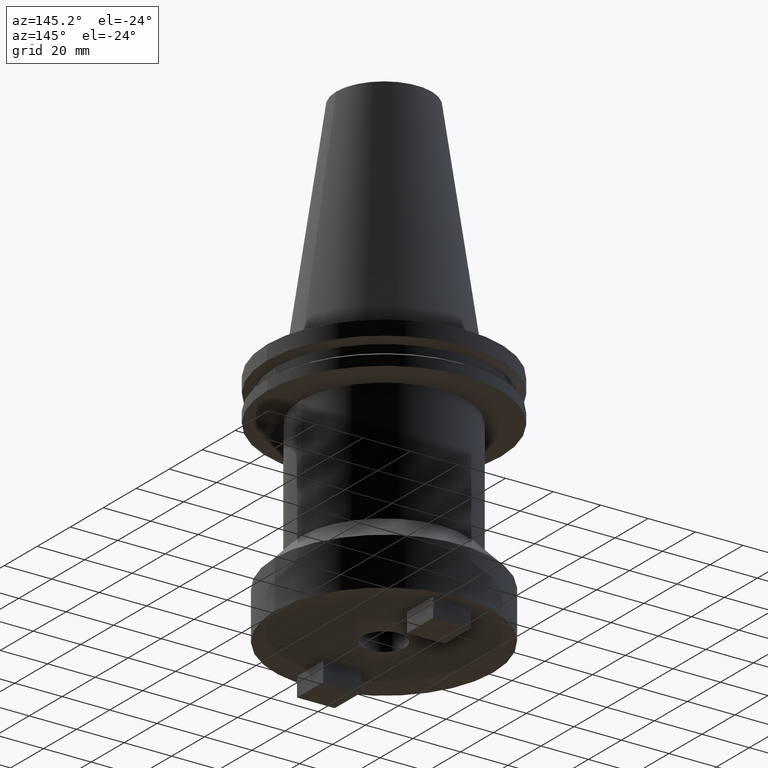
[diagram: clean part render]
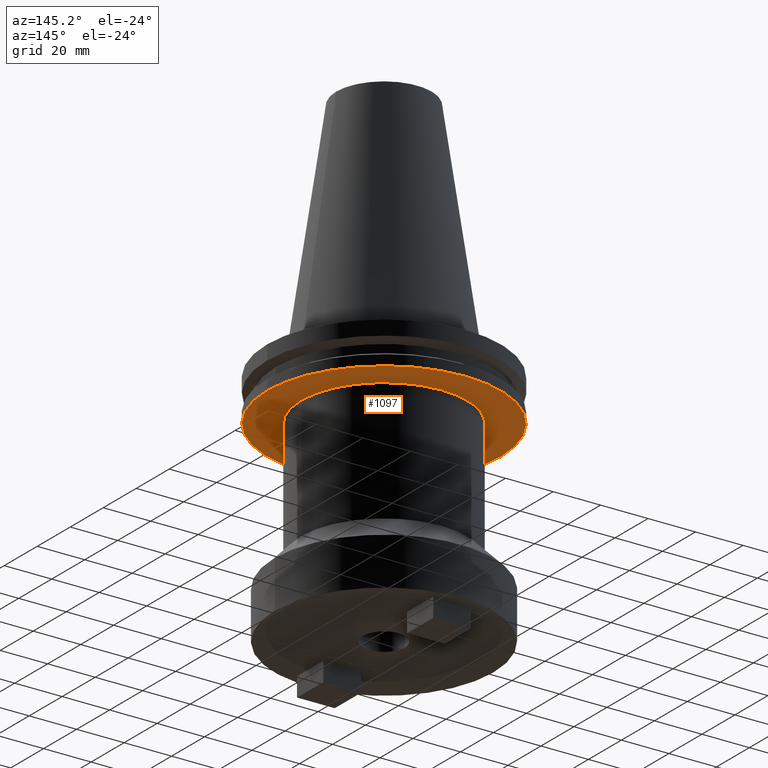
[diagram: same view with one face highlighted and labeled with its STEP entity id]
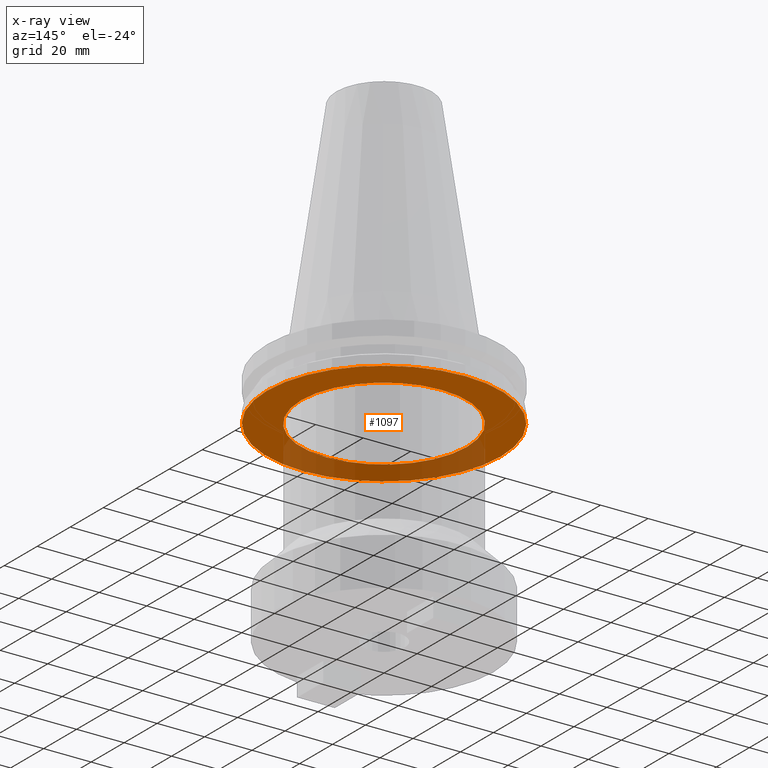
[diagram: x-ray of the same camera — body ghosted, the highlighted face saturated]
A machine part, auxiliary view. The second image highlights one B-rep face of the part: STEP entity #1097.
The next image is the same camera in x-ray: the body ghosted, the highlighted face saturated — about 31% of this face is hidden behind the body in this view.
In plain terms, the highlighted planar face has unit normal (0, -0, 1).
Its self-contained STEP definition (entity closure, byte-faithful):
#67 = ORIENTED_EDGE ( 'NONE', *, *, #1079, .T. ) ;
#70 = CARTESIAN_POINT ( 'NONE',  ( 0.000000000000000000, 0.000000000000000000, -19.04999999999999716 ) ) ;
#74 = CARTESIAN_POINT ( 'NONE',  ( -34.92499999999999716, 4.277078946022130887E-15, -19.04999999999999716 ) ) ;
#92 = PLANE ( 'NONE',  #504 ) ;
#126 = AXIS2_PLACEMENT_3D ( 'NONE', #1013, #347, #932 ) ;
#158 = DIRECTION ( 'NONE',  ( 0.000000000000000000, -0.000000000000000000, 1.000000000000000000 ) ) ;
#191 = CARTESIAN_POINT ( 'NONE',  ( 0.000000000000000000, 0.000000000000000000, -19.04999999999999716 ) ) ;
#198 = CARTESIAN_POINT ( 'NONE',  ( 49.21499999999998920, 0.000000000000000000, -19.04999999999999716 ) ) ;
#230 = CIRCLE ( 'NONE', #863, 34.92499999999999716 ) ;
#290 = DIRECTION ( 'NONE',  ( -0.000000000000000000, -0.000000000000000000, 1.000000000000000000 ) ) ;
#347 = DIRECTION ( 'NONE',  ( -0.000000000000000000, -0.000000000000000000, 1.000000000000000000 ) ) ;
#349 = CARTESIAN_POINT ( 'NONE',  ( 0.000000000000000000, 0.000000000000000000, -19.04999999999999716 ) ) ;
#358 = CARTESIAN_POINT ( 'NONE',  ( 0.000000000000000000, 49.21499999999998920, -19.04999999999999716 ) ) ;
#364 = ORIENTED_EDGE ( 'NONE', *, *, #1068, .F. ) ;
#403 = CIRCLE ( 'NONE', #126, 34.92499999999999716 ) ;
#431 = EDGE_LOOP ( 'NONE', ( #935, #364 ) ) ;
#432 = VERTEX_POINT ( 'NONE', #920 ) ;
#451 = DIRECTION ( 'NONE',  ( 1.000000000000000000, 0.000000000000000000, 0.000000000000000000 ) ) ;
#470 = EDGE_LOOP ( 'NONE', ( #67, #975 ) ) ;
#479 = EDGE_CURVE ( 'NONE', #500, #432, #574, .T. ) ;
#496 = EDGE_CURVE ( 'NONE', #1102, #581, #230, .T. ) ;
#500 = VERTEX_POINT ( 'NONE', #198 ) ;
#504 = AXIS2_PLACEMENT_3D ( 'NONE', #358, #158, #851 ) ;
#509 = FACE_OUTER_BOUND ( 'NONE', #431, .T. ) ;
#559 = CIRCLE ( 'NONE', #1087, 49.21499999999998920 ) ;
#574 = CIRCLE ( 'NONE', #665, 49.21499999999998920 ) ;
#581 = VERTEX_POINT ( 'NONE', #835 ) ;
#617 = DIRECTION ( 'NONE',  ( -0.000000000000000000, -0.000000000000000000, 1.000000000000000000 ) ) ;
#665 = AXIS2_PLACEMENT_3D ( 'NONE', #191, #290, #451 ) ;
#684 = FACE_BOUND ( 'NONE', #470, .T. ) ;
#760 = DIRECTION ( 'NONE',  ( -0.000000000000000000, -0.000000000000000000, 1.000000000000000000 ) ) ;
#770 = DIRECTION ( 'NONE',  ( 1.000000000000000000, 0.000000000000000000, 0.000000000000000000 ) ) ;
#835 = CARTESIAN_POINT ( 'NONE',  ( 34.92499999999999716, 0.000000000000000000, -19.04999999999999716 ) ) ;
#851 = DIRECTION ( 'NONE',  ( 1.000000000000000000, 0.000000000000000000, 0.000000000000000000 ) ) ;
#863 = AXIS2_PLACEMENT_3D ( 'NONE', #349, #617, #864 ) ;
#864 = DIRECTION ( 'NONE',  ( 1.000000000000000000, 0.000000000000000000, 0.000000000000000000 ) ) ;
#920 = CARTESIAN_POINT ( 'NONE',  ( -49.21499999999998920, 6.027099222003697037E-15, -19.04999999999999716 ) ) ;
#932 = DIRECTION ( 'NONE',  ( 1.000000000000000000, 0.000000000000000000, 0.000000000000000000 ) ) ;
#935 = ORIENTED_EDGE ( 'NONE', *, *, #479, .F. ) ;
#975 = ORIENTED_EDGE ( 'NONE', *, *, #496, .T. ) ;
#1013 = CARTESIAN_POINT ( 'NONE',  ( 0.000000000000000000, 0.000000000000000000, -19.04999999999999716 ) ) ;
#1068 = EDGE_CURVE ( 'NONE', #432, #500, #559, .T. ) ;
#1079 = EDGE_CURVE ( 'NONE', #581, #1102, #403, .T. ) ;
#1087 = AXIS2_PLACEMENT_3D ( 'NONE', #70, #760, #770 ) ;
#1097 = ADVANCED_FACE ( 'NONE', ( #509, #684 ), #92, .F. ) ;
#1102 = VERTEX_POINT ( 'NONE', #74 ) ;